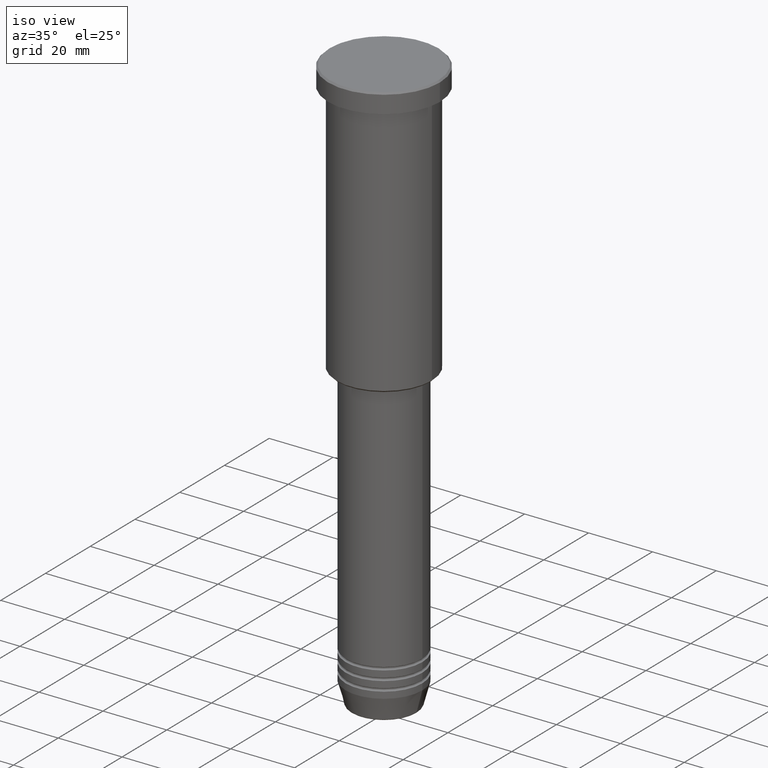
[diagram: clean part render]
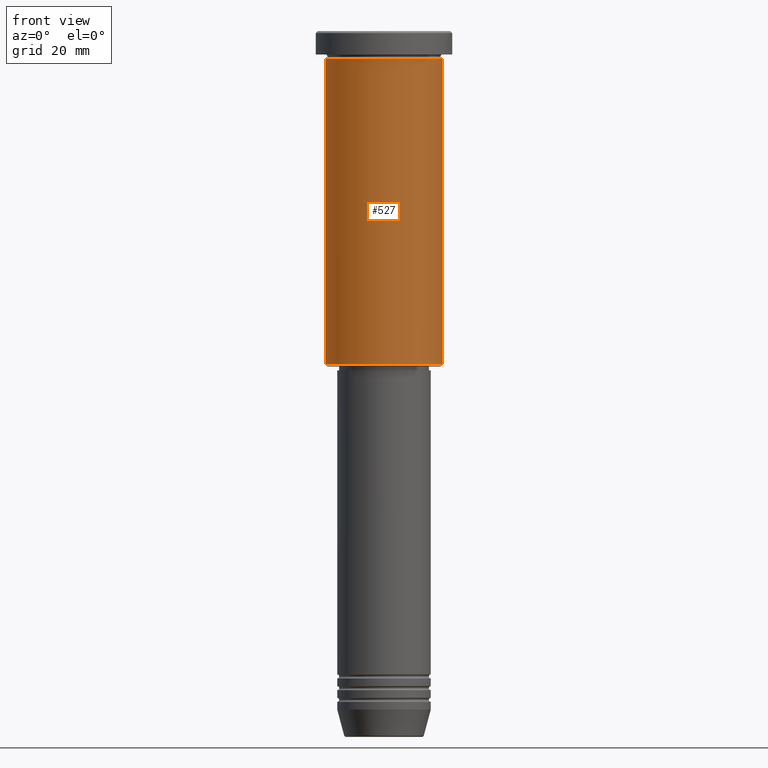
[diagram: tour spotlight — one face highlighted and labeled with its STEP entity id]
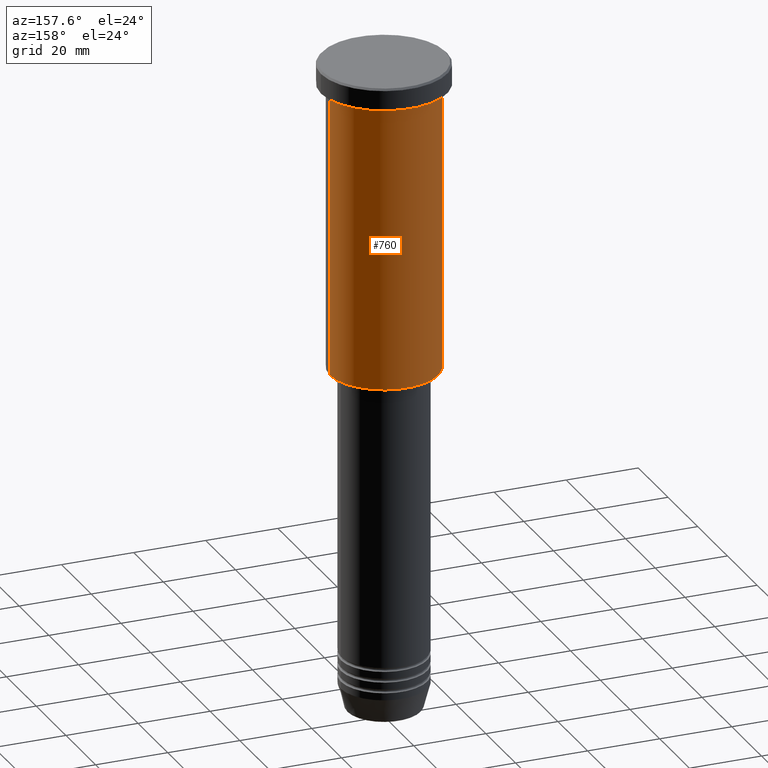
[diagram: tour spotlight — one face highlighted and labeled with its STEP entity id]
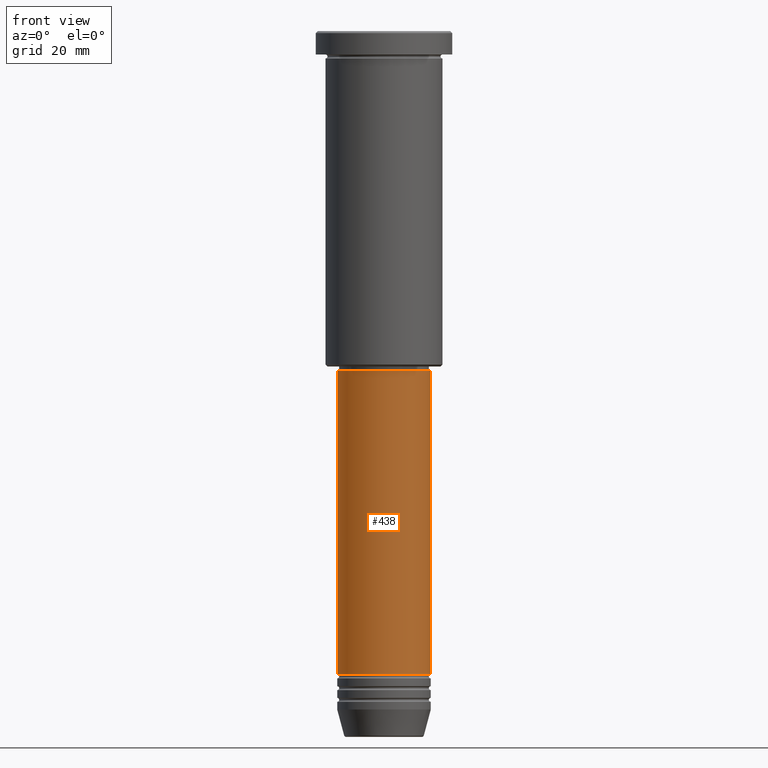
[diagram: tour spotlight — one face highlighted and labeled with its STEP entity id]
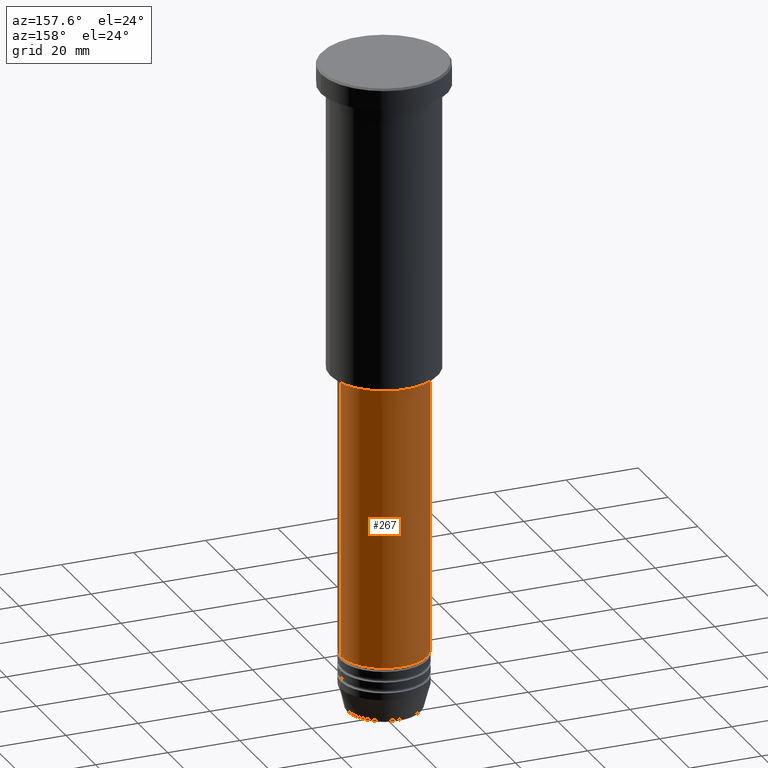
[diagram: tour spotlight — one face highlighted and labeled with its STEP entity id]
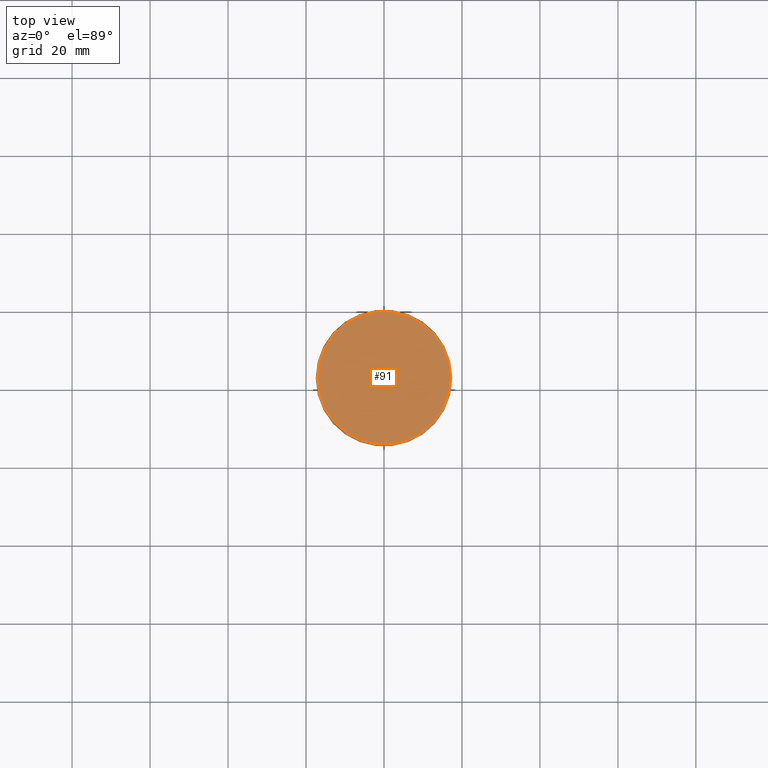
[diagram: tour spotlight — one face highlighted and labeled with its STEP entity id]
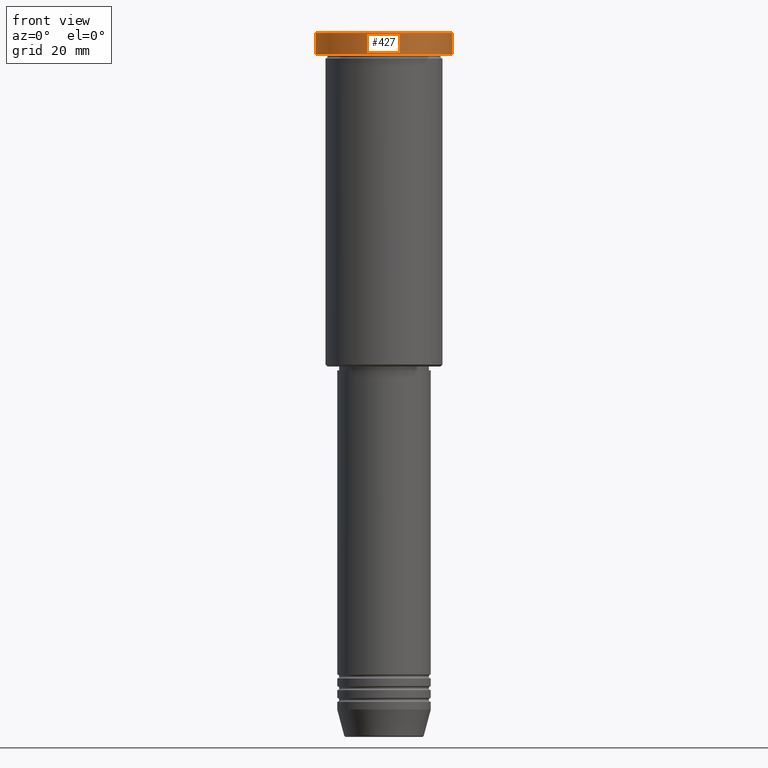
[diagram: tour spotlight — one face highlighted and labeled with its STEP entity id]
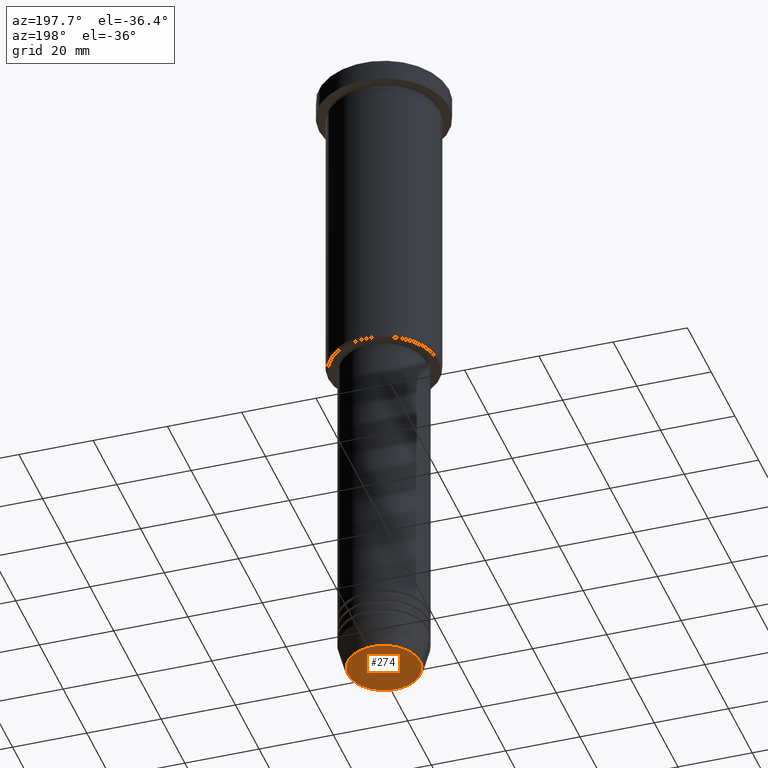
[diagram: tour spotlight — one face highlighted and labeled with its STEP entity id]
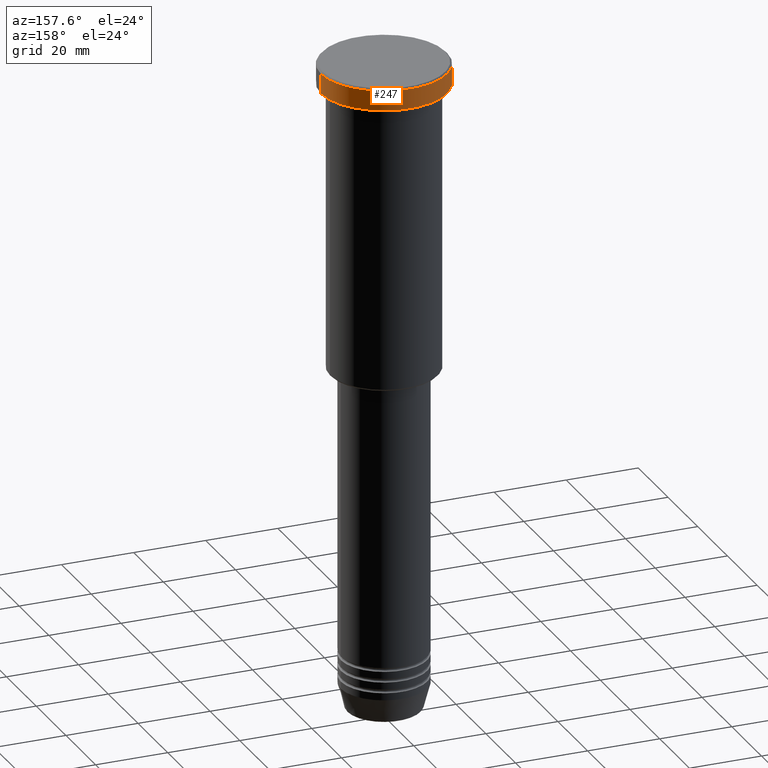
[diagram: tour spotlight — one face highlighted and labeled with its STEP entity id]
A machine part: a face-by-face anatomy tour. The part has 43 B-rep faces; the first image is the clean iso view, then the 8 largest visible faces are spotlighted one at a time (largest first), each with its STEP entity span.

Face 1 — front view, entity #527. In plain terms, the highlighted cylindrical surface (partial cylindrical patch) has radius 15 mm, axis along (-0, -0, 1).
Definition (entity closure, byte-faithful):
#44 = CARTESIAN_POINT ( 'NONE',  ( 0.000000000000000000, 0.000000000000000000, -6.999999999999995559 ) ) ;
#101 = CARTESIAN_POINT ( 'NONE',  ( -15.00000000000000000, 1.836970198721029589E-15, -6.999999999999995559 ) ) ;
#110 = DIRECTION ( 'NONE',  ( -0.000000000000000000, -0.000000000000000000, 1.000000000000000000 ) ) ;
#195 = VERTEX_POINT ( 'NONE', #391 ) ;
#220 = DIRECTION ( 'NONE',  ( 1.000000000000000000, 0.000000000000000000, 0.000000000000000000 ) ) ;
#222 = FACE_OUTER_BOUND ( 'NONE', #227, .T. ) ;
#226 = LINE ( 'NONE', #887, #1029 ) ;
#227 = EDGE_LOOP ( 'NONE', ( #426, #532, #1183, #449 ) ) ;
#229 = CARTESIAN_POINT ( 'NONE',  ( 15.00000000000000000, 0.000000000000000000, -6.999999999999995559 ) ) ;
#250 = VERTEX_POINT ( 'NONE', #229 ) ;
#277 = DIRECTION ( 'NONE',  ( 1.000000000000000000, 0.000000000000000000, 0.000000000000000000 ) ) ;
#340 = CIRCLE ( 'NONE', #1010, 15.00000000000000000 ) ;
#391 = CARTESIAN_POINT ( 'NONE',  ( 15.00000000000000000, 0.000000000000000000, -85.49999999999998579 ) ) ;
#398 = DIRECTION ( 'NONE',  ( -1.000000000000000000, 0.000000000000000000, 0.000000000000000000 ) ) ;
#419 = LINE ( 'NONE', #1046, #1141 ) ;
#426 = ORIENTED_EDGE ( 'NONE', *, *, #944, .F. ) ;
#449 = ORIENTED_EDGE ( 'NONE', *, *, #932, .F. ) ;
#509 = CARTESIAN_POINT ( 'NONE',  ( 0.000000000000000000, 0.000000000000000000, 0.000000000000000000 ) ) ;
#518 = CIRCLE ( 'NONE', #1103, 15.00000000000000000 ) ;
#527 = ADVANCED_FACE ( 'NONE', ( #222 ), #1044, .T. ) ;
#532 = ORIENTED_EDGE ( 'NONE', *, *, #1018, .T. ) ;
#602 = DIRECTION ( 'NONE',  ( -0.000000000000000000, -0.000000000000000000, 1.000000000000000000 ) ) ;
#729 = DIRECTION ( 'NONE',  ( -0.000000000000000000, -0.000000000000000000, 1.000000000000000000 ) ) ;
#738 = AXIS2_PLACEMENT_3D ( 'NONE', #509, #729, #277 ) ;
#743 = VERTEX_POINT ( 'NONE', #1090 ) ;
#754 = VERTEX_POINT ( 'NONE', #101 ) ;
#862 = DIRECTION ( 'NONE',  ( -0.000000000000000000, -0.000000000000000000, 1.000000000000000000 ) ) ;
#887 = CARTESIAN_POINT ( 'NONE',  ( 15.00000000000000000, 0.000000000000000000, 0.000000000000000000 ) ) ;
#932 = EDGE_CURVE ( 'NONE', #754, #250, #340, .T. ) ;
#939 = CARTESIAN_POINT ( 'NONE',  ( 0.000000000000000000, 0.000000000000000000, -85.49999999999998579 ) ) ;
#944 = EDGE_CURVE ( 'NONE', #743, #754, #419, .T. ) ;
#1010 = AXIS2_PLACEMENT_3D ( 'NONE', #44, #862, #220 ) ;
#1018 = EDGE_CURVE ( 'NONE', #743, #195, #518, .T. ) ;
#1029 = VECTOR ( 'NONE', #602, 1000.000000000000000 ) ;
#1034 = DIRECTION ( 'NONE',  ( -0.000000000000000000, -0.000000000000000000, 1.000000000000000000 ) ) ;
#1044 = CYLINDRICAL_SURFACE ( 'NONE', #738, 15.00000000000000000 ) ;
#1046 = CARTESIAN_POINT ( 'NONE',  ( -15.00000000000000000, 1.836970198721029589E-15, 0.000000000000000000 ) ) ;
#1090 = CARTESIAN_POINT ( 'NONE',  ( -15.00000000000000000, 1.836970198721029589E-15, -85.49999999999998579 ) ) ;
#1103 = AXIS2_PLACEMENT_3D ( 'NONE', #939, #1034, #398 ) ;
#1140 = EDGE_CURVE ( 'NONE', #195, #250, #226, .T. ) ;
#1141 = VECTOR ( 'NONE', #110, 1000.000000000000000 ) ;
#1183 = ORIENTED_EDGE ( 'NONE', *, *, #1140, .T. ) ;

Face 2 — auxiliary view, entity #760. In plain terms, the highlighted cylindrical surface (partial cylindrical patch) has radius 15 mm, axis along (-0, -0, 1).
Definition (entity closure, byte-faithful):
#1 = CARTESIAN_POINT ( 'NONE',  ( 0.000000000000000000, 0.000000000000000000, 0.000000000000000000 ) ) ;
#73 = DIRECTION ( 'NONE',  ( -0.000000000000000000, -0.000000000000000000, 1.000000000000000000 ) ) ;
#85 = DIRECTION ( 'NONE',  ( -0.000000000000000000, -0.000000000000000000, 1.000000000000000000 ) ) ;
#93 = ORIENTED_EDGE ( 'NONE', *, *, #1023, .T. ) ;
#101 = CARTESIAN_POINT ( 'NONE',  ( -15.00000000000000000, 1.836970198721029589E-15, -6.999999999999995559 ) ) ;
#110 = DIRECTION ( 'NONE',  ( -0.000000000000000000, -0.000000000000000000, 1.000000000000000000 ) ) ;
#112 = EDGE_LOOP ( 'NONE', ( #93, #440, #850, #1097 ) ) ;
#122 = DIRECTION ( 'NONE',  ( -1.000000000000000000, 0.000000000000000000, 0.000000000000000000 ) ) ;
#151 = CARTESIAN_POINT ( 'NONE',  ( 0.000000000000000000, 0.000000000000000000, -6.999999999999995559 ) ) ;
#158 = CIRCLE ( 'NONE', #819, 15.00000000000000000 ) ;
#177 = AXIS2_PLACEMENT_3D ( 'NONE', #151, #73, #795 ) ;
#195 = VERTEX_POINT ( 'NONE', #391 ) ;
#226 = LINE ( 'NONE', #887, #1029 ) ;
#229 = CARTESIAN_POINT ( 'NONE',  ( 15.00000000000000000, 0.000000000000000000, -6.999999999999995559 ) ) ;
#250 = VERTEX_POINT ( 'NONE', #229 ) ;
#306 = DIRECTION ( 'NONE',  ( -0.000000000000000000, -0.000000000000000000, 1.000000000000000000 ) ) ;
#391 = CARTESIAN_POINT ( 'NONE',  ( 15.00000000000000000, 0.000000000000000000, -85.49999999999998579 ) ) ;
#419 = LINE ( 'NONE', #1046, #1141 ) ;
#440 = ORIENTED_EDGE ( 'NONE', *, *, #944, .T. ) ;
#473 = EDGE_CURVE ( 'NONE', #250, #754, #696, .T. ) ;
#602 = DIRECTION ( 'NONE',  ( -0.000000000000000000, -0.000000000000000000, 1.000000000000000000 ) ) ;
#633 = CYLINDRICAL_SURFACE ( 'NONE', #756, 15.00000000000000000 ) ;
#640 = FACE_OUTER_BOUND ( 'NONE', #112, .T. ) ;
#696 = CIRCLE ( 'NONE', #177, 15.00000000000000000 ) ;
#743 = VERTEX_POINT ( 'NONE', #1090 ) ;
#754 = VERTEX_POINT ( 'NONE', #101 ) ;
#755 = CARTESIAN_POINT ( 'NONE',  ( 0.000000000000000000, 0.000000000000000000, -85.49999999999998579 ) ) ;
#756 = AXIS2_PLACEMENT_3D ( 'NONE', #1, #85, #926 ) ;
#760 = ADVANCED_FACE ( 'NONE', ( #640 ), #633, .T. ) ;
#795 = DIRECTION ( 'NONE',  ( 1.000000000000000000, 0.000000000000000000, 0.000000000000000000 ) ) ;
#819 = AXIS2_PLACEMENT_3D ( 'NONE', #755, #306, #122 ) ;
#850 = ORIENTED_EDGE ( 'NONE', *, *, #473, .F. ) ;
#887 = CARTESIAN_POINT ( 'NONE',  ( 15.00000000000000000, 0.000000000000000000, 0.000000000000000000 ) ) ;
#926 = DIRECTION ( 'NONE',  ( 1.000000000000000000, 0.000000000000000000, 0.000000000000000000 ) ) ;
#944 = EDGE_CURVE ( 'NONE', #743, #754, #419, .T. ) ;
#1023 = EDGE_CURVE ( 'NONE', #195, #743, #158, .T. ) ;
#1029 = VECTOR ( 'NONE', #602, 1000.000000000000000 ) ;
#1046 = CARTESIAN_POINT ( 'NONE',  ( -15.00000000000000000, 1.836970198721029589E-15, 0.000000000000000000 ) ) ;
#1090 = CARTESIAN_POINT ( 'NONE',  ( -15.00000000000000000, 1.836970198721029589E-15, -85.49999999999998579 ) ) ;
#1097 = ORIENTED_EDGE ( 'NONE', *, *, #1140, .F. ) ;
#1140 = EDGE_CURVE ( 'NONE', #195, #250, #226, .T. ) ;
#1141 = VECTOR ( 'NONE', #110, 1000.000000000000000 ) ;

Face 3 — front view, entity #438. In plain terms, the highlighted cylindrical surface (partial cylindrical patch) has radius 12 mm, axis along (-0, -0, 1).
Definition (entity closure, byte-faithful):
#64 = FACE_OUTER_BOUND ( 'NONE', #83, .T. ) ;
#69 = AXIS2_PLACEMENT_3D ( 'NONE', #1173, #719, #635 ) ;
#83 = EDGE_LOOP ( 'NONE', ( #472, #381, #694, #1176 ) ) ;
#135 = LINE ( 'NONE', #513, #1079 ) ;
#207 = EDGE_CURVE ( 'NONE', #241, #956, #537, .T. ) ;
#223 = DIRECTION ( 'NONE',  ( 1.000000000000000000, 0.000000000000000000, 0.000000000000000000 ) ) ;
#241 = VERTEX_POINT ( 'NONE', #748 ) ;
#244 = CYLINDRICAL_SURFACE ( 'NONE', #402, 12.00000000000000000 ) ;
#249 = DIRECTION ( 'NONE',  ( -0.000000000000000000, -0.000000000000000000, 1.000000000000000000 ) ) ;
#251 = CARTESIAN_POINT ( 'NONE',  ( -12.00000000000000000, 1.469576158976823947E-15, -87.00000000000002842 ) ) ;
#308 = EDGE_CURVE ( 'NONE', #956, #1045, #135, .T. ) ;
#381 = ORIENTED_EDGE ( 'NONE', *, *, #207, .T. ) ;
#402 = AXIS2_PLACEMENT_3D ( 'NONE', #894, #866, #223 ) ;
#438 = ADVANCED_FACE ( 'NONE', ( #64 ), #244, .T. ) ;
#450 = DIRECTION ( 'NONE',  ( -0.000000000000000000, -0.000000000000000000, 1.000000000000000000 ) ) ;
#472 = ORIENTED_EDGE ( 'NONE', *, *, #548, .F. ) ;
#496 = CARTESIAN_POINT ( 'NONE',  ( 12.00000000000000000, 0.000000000000000000, -164.9999999999999716 ) ) ;
#500 = CIRCLE ( 'NONE', #69, 12.00000000000000000 ) ;
#513 = CARTESIAN_POINT ( 'NONE',  ( 12.00000000000000000, 0.000000000000000000, 0.000000000000000000 ) ) ;
#537 = CIRCLE ( 'NONE', #775, 12.00000000000000000 ) ;
#548 = EDGE_CURVE ( 'NONE', #241, #1143, #747, .T. ) ;
#579 = EDGE_CURVE ( 'NONE', #1143, #1045, #500, .T. ) ;
#635 = DIRECTION ( 'NONE',  ( 1.000000000000000000, 0.000000000000000000, 0.000000000000000000 ) ) ;
#682 = VECTOR ( 'NONE', #937, 1000.000000000000000 ) ;
#694 = ORIENTED_EDGE ( 'NONE', *, *, #308, .T. ) ;
#719 = DIRECTION ( 'NONE',  ( -0.000000000000000000, -0.000000000000000000, 1.000000000000000000 ) ) ;
#747 = LINE ( 'NONE', #1114, #682 ) ;
#748 = CARTESIAN_POINT ( 'NONE',  ( -12.00000000000000000, 1.469576158976823947E-15, -164.9999999999999716 ) ) ;
#775 = AXIS2_PLACEMENT_3D ( 'NONE', #1110, #450, #807 ) ;
#807 = DIRECTION ( 'NONE',  ( 1.000000000000000000, 0.000000000000000000, 0.000000000000000000 ) ) ;
#866 = DIRECTION ( 'NONE',  ( -0.000000000000000000, -0.000000000000000000, 1.000000000000000000 ) ) ;
#879 = CARTESIAN_POINT ( 'NONE',  ( 12.00000000000000000, 0.000000000000000000, -87.00000000000002842 ) ) ;
#894 = CARTESIAN_POINT ( 'NONE',  ( 0.000000000000000000, 0.000000000000000000, 0.000000000000000000 ) ) ;
#937 = DIRECTION ( 'NONE',  ( -0.000000000000000000, -0.000000000000000000, 1.000000000000000000 ) ) ;
#956 = VERTEX_POINT ( 'NONE', #496 ) ;
#1045 = VERTEX_POINT ( 'NONE', #879 ) ;
#1079 = VECTOR ( 'NONE', #249, 1000.000000000000000 ) ;
#1110 = CARTESIAN_POINT ( 'NONE',  ( 0.000000000000000000, 0.000000000000000000, -164.9999999999999716 ) ) ;
#1114 = CARTESIAN_POINT ( 'NONE',  ( -12.00000000000000000, 1.469576158976823947E-15, 0.000000000000000000 ) ) ;
#1143 = VERTEX_POINT ( 'NONE', #251 ) ;
#1173 = CARTESIAN_POINT ( 'NONE',  ( 0.000000000000000000, 0.000000000000000000, -87.00000000000002842 ) ) ;
#1176 = ORIENTED_EDGE ( 'NONE', *, *, #579, .F. ) ;

Face 4 — auxiliary view, entity #267. In plain terms, the highlighted cylindrical surface (partial cylindrical patch) has radius 12 mm, axis along (-0, -0, 1).
Definition (entity closure, byte-faithful):
#24 = ORIENTED_EDGE ( 'NONE', *, *, #308, .F. ) ;
#135 = LINE ( 'NONE', #513, #1079 ) ;
#150 = CYLINDRICAL_SURFACE ( 'NONE', #231, 12.00000000000000000 ) ;
#202 = EDGE_CURVE ( 'NONE', #1045, #1143, #384, .T. ) ;
#231 = AXIS2_PLACEMENT_3D ( 'NONE', #535, #892, #1162 ) ;
#241 = VERTEX_POINT ( 'NONE', #748 ) ;
#249 = DIRECTION ( 'NONE',  ( -0.000000000000000000, -0.000000000000000000, 1.000000000000000000 ) ) ;
#251 = CARTESIAN_POINT ( 'NONE',  ( -12.00000000000000000, 1.469576158976823947E-15, -87.00000000000002842 ) ) ;
#266 = DIRECTION ( 'NONE',  ( -0.000000000000000000, -0.000000000000000000, 1.000000000000000000 ) ) ;
#267 = ADVANCED_FACE ( 'NONE', ( #977 ), #150, .T. ) ;
#308 = EDGE_CURVE ( 'NONE', #956, #1045, #135, .T. ) ;
#383 = ORIENTED_EDGE ( 'NONE', *, *, #548, .T. ) ;
#384 = CIRCLE ( 'NONE', #1136, 12.00000000000000000 ) ;
#434 = ORIENTED_EDGE ( 'NONE', *, *, #1012, .T. ) ;
#485 = DIRECTION ( 'NONE',  ( -0.000000000000000000, -0.000000000000000000, 1.000000000000000000 ) ) ;
#496 = CARTESIAN_POINT ( 'NONE',  ( 12.00000000000000000, 0.000000000000000000, -164.9999999999999716 ) ) ;
#513 = CARTESIAN_POINT ( 'NONE',  ( 12.00000000000000000, 0.000000000000000000, 0.000000000000000000 ) ) ;
#535 = CARTESIAN_POINT ( 'NONE',  ( 0.000000000000000000, 0.000000000000000000, 0.000000000000000000 ) ) ;
#548 = EDGE_CURVE ( 'NONE', #241, #1143, #747, .T. ) ;
#554 = CARTESIAN_POINT ( 'NONE',  ( 0.000000000000000000, 0.000000000000000000, -87.00000000000002842 ) ) ;
#610 = AXIS2_PLACEMENT_3D ( 'NONE', #1132, #485, #845 ) ;
#682 = VECTOR ( 'NONE', #937, 1000.000000000000000 ) ;
#742 = DIRECTION ( 'NONE',  ( 1.000000000000000000, 0.000000000000000000, 0.000000000000000000 ) ) ;
#747 = LINE ( 'NONE', #1114, #682 ) ;
#748 = CARTESIAN_POINT ( 'NONE',  ( -12.00000000000000000, 1.469576158976823947E-15, -164.9999999999999716 ) ) ;
#845 = DIRECTION ( 'NONE',  ( 1.000000000000000000, 0.000000000000000000, 0.000000000000000000 ) ) ;
#879 = CARTESIAN_POINT ( 'NONE',  ( 12.00000000000000000, 0.000000000000000000, -87.00000000000002842 ) ) ;
#892 = DIRECTION ( 'NONE',  ( -0.000000000000000000, -0.000000000000000000, 1.000000000000000000 ) ) ;
#937 = DIRECTION ( 'NONE',  ( -0.000000000000000000, -0.000000000000000000, 1.000000000000000000 ) ) ;
#956 = VERTEX_POINT ( 'NONE', #496 ) ;
#959 = ORIENTED_EDGE ( 'NONE', *, *, #202, .F. ) ;
#977 = FACE_OUTER_BOUND ( 'NONE', #1158, .T. ) ;
#1012 = EDGE_CURVE ( 'NONE', #956, #241, #1154, .T. ) ;
#1045 = VERTEX_POINT ( 'NONE', #879 ) ;
#1079 = VECTOR ( 'NONE', #249, 1000.000000000000000 ) ;
#1114 = CARTESIAN_POINT ( 'NONE',  ( -12.00000000000000000, 1.469576158976823947E-15, 0.000000000000000000 ) ) ;
#1132 = CARTESIAN_POINT ( 'NONE',  ( 0.000000000000000000, 0.000000000000000000, -164.9999999999999716 ) ) ;
#1136 = AXIS2_PLACEMENT_3D ( 'NONE', #554, #266, #742 ) ;
#1143 = VERTEX_POINT ( 'NONE', #251 ) ;
#1154 = CIRCLE ( 'NONE', #610, 12.00000000000000000 ) ;
#1158 = EDGE_LOOP ( 'NONE', ( #434, #383, #959, #24 ) ) ;
#1162 = DIRECTION ( 'NONE',  ( 1.000000000000000000, 0.000000000000000000, 0.000000000000000000 ) ) ;

Face 5 — top view, entity #91. In plain terms, the highlighted planar face has unit normal (0, -0, 1).
Definition (entity closure, byte-faithful):
#16 = DIRECTION ( 'NONE',  ( 0.000000000000000000, -0.000000000000000000, 1.000000000000000000 ) ) ;
#37 = ORIENTED_EDGE ( 'NONE', *, *, #1066, .T. ) ;
#91 = ADVANCED_FACE ( 'NONE', ( #929 ), #477, .T. ) ;
#314 = DIRECTION ( 'NONE',  ( 1.000000000000000000, 0.000000000000000000, 0.000000000000000000 ) ) ;
#336 = EDGE_CURVE ( 'NONE', #724, #341, #386, .T. ) ;
#341 = VERTEX_POINT ( 'NONE', #678 ) ;
#386 = CIRCLE ( 'NONE', #538, 17.00000000000001421 ) ;
#399 = AXIS2_PLACEMENT_3D ( 'NONE', #838, #16, #1050 ) ;
#474 = ORIENTED_EDGE ( 'NONE', *, *, #336, .T. ) ;
#477 = PLANE ( 'NONE',  #399 ) ;
#501 = CIRCLE ( 'NONE', #650, 17.00000000000001421 ) ;
#538 = AXIS2_PLACEMENT_3D ( 'NONE', #603, #954, #314 ) ;
#603 = CARTESIAN_POINT ( 'NONE',  ( 0.000000000000000000, 0.000000000000000000, 0.000000000000000000 ) ) ;
#617 = CARTESIAN_POINT ( 'NONE',  ( 0.000000000000000000, 0.000000000000000000, 0.000000000000000000 ) ) ;
#650 = AXIS2_PLACEMENT_3D ( 'NONE', #617, #790, #1051 ) ;
#678 = CARTESIAN_POINT ( 'NONE',  ( -17.00000000000001421, 0.000000000000000000, 0.000000000000000000 ) ) ;
#680 = EDGE_LOOP ( 'NONE', ( #37, #474 ) ) ;
#724 = VERTEX_POINT ( 'NONE', #812 ) ;
#790 = DIRECTION ( 'NONE',  ( -0.000000000000000000, -0.000000000000000000, 1.000000000000000000 ) ) ;
#812 = CARTESIAN_POINT ( 'NONE',  ( 17.00000000000001421, 2.112515728529185250E-15, 0.000000000000000000 ) ) ;
#838 = CARTESIAN_POINT ( 'NONE',  ( 0.000000000000000000, 0.000000000000000000, 0.000000000000000000 ) ) ;
#929 = FACE_OUTER_BOUND ( 'NONE', #680, .T. ) ;
#954 = DIRECTION ( 'NONE',  ( -0.000000000000000000, -0.000000000000000000, 1.000000000000000000 ) ) ;
#1050 = DIRECTION ( 'NONE',  ( 1.000000000000000000, 0.000000000000000000, 0.000000000000000000 ) ) ;
#1051 = DIRECTION ( 'NONE',  ( 1.000000000000000000, 0.000000000000000000, 0.000000000000000000 ) ) ;
#1066 = EDGE_CURVE ( 'NONE', #341, #724, #501, .T. ) ;

Face 6 — front view, entity #427. In plain terms, the highlighted cylindrical surface (partial cylindrical patch) has radius 17.5 mm, axis along (-0, -0, 1).
Definition (entity closure, byte-faithful):
#12 = CARTESIAN_POINT ( 'NONE',  ( 17.50000000000000000, 0.000000000000000000, -5.999999999999995559 ) ) ;
#28 = DIRECTION ( 'NONE',  ( 0.000000000000000000, 0.000000000000000000, -1.000000000000000000 ) ) ;
#30 = AXIS2_PLACEMENT_3D ( 'NONE', #1049, #530, #884 ) ;
#45 = LINE ( 'NONE', #599, #1006 ) ;
#86 = AXIS2_PLACEMENT_3D ( 'NONE', #848, #28, #310 ) ;
#190 = VERTEX_POINT ( 'NONE', #12 ) ;
#232 = EDGE_CURVE ( 'NONE', #904, #920, #337, .T. ) ;
#242 = ORIENTED_EDGE ( 'NONE', *, *, #304, .T. ) ;
#257 = DIRECTION ( 'NONE',  ( -0.000000000000000000, -0.000000000000000000, 1.000000000000000000 ) ) ;
#259 = DIRECTION ( 'NONE',  ( 1.000000000000000000, 0.000000000000000000, 0.000000000000000000 ) ) ;
#298 = CIRCLE ( 'NONE', #1119, 17.50000000000000000 ) ;
#304 = EDGE_CURVE ( 'NONE', #949, #190, #298, .T. ) ;
#310 = DIRECTION ( 'NONE',  ( 1.000000000000000000, 0.000000000000000000, 0.000000000000000000 ) ) ;
#316 = DIRECTION ( 'NONE',  ( -0.000000000000000000, -0.000000000000000000, 1.000000000000000000 ) ) ;
#337 = CIRCLE ( 'NONE', #86, 17.50000000000000000 ) ;
#343 = EDGE_LOOP ( 'NONE', ( #882, #242, #875, #856 ) ) ;
#358 = LINE ( 'NONE', #1080, #646 ) ;
#377 = EDGE_CURVE ( 'NONE', #949, #920, #45, .T. ) ;
#427 = ADVANCED_FACE ( 'NONE', ( #659 ), #1146, .T. ) ;
#484 = EDGE_CURVE ( 'NONE', #190, #904, #358, .T. ) ;
#530 = DIRECTION ( 'NONE',  ( -0.000000000000000000, -0.000000000000000000, 1.000000000000000000 ) ) ;
#568 = DIRECTION ( 'NONE',  ( -0.000000000000000000, -0.000000000000000000, 1.000000000000000000 ) ) ;
#599 = CARTESIAN_POINT ( 'NONE',  ( -17.50000000000000000, 2.143131898507868248E-15, 0.000000000000000000 ) ) ;
#646 = VECTOR ( 'NONE', #257, 1000.000000000000000 ) ;
#659 = FACE_OUTER_BOUND ( 'NONE', #343, .T. ) ;
#763 = CARTESIAN_POINT ( 'NONE',  ( -17.50000000000000000, 2.143131898507868248E-15, -0.5000000000000003331 ) ) ;
#848 = CARTESIAN_POINT ( 'NONE',  ( 0.000000000000000000, 0.000000000000000000, -0.5000000000000003331 ) ) ;
#856 = ORIENTED_EDGE ( 'NONE', *, *, #232, .T. ) ;
#858 = CARTESIAN_POINT ( 'NONE',  ( 17.50000000000000000, 0.000000000000000000, -0.5000000000000003331 ) ) ;
#875 = ORIENTED_EDGE ( 'NONE', *, *, #484, .T. ) ;
#882 = ORIENTED_EDGE ( 'NONE', *, *, #377, .F. ) ;
#884 = DIRECTION ( 'NONE',  ( 1.000000000000000000, 0.000000000000000000, 0.000000000000000000 ) ) ;
#904 = VERTEX_POINT ( 'NONE', #858 ) ;
#920 = VERTEX_POINT ( 'NONE', #763 ) ;
#949 = VERTEX_POINT ( 'NONE', #1122 ) ;
#1006 = VECTOR ( 'NONE', #316, 1000.000000000000000 ) ;
#1049 = CARTESIAN_POINT ( 'NONE',  ( 0.000000000000000000, 0.000000000000000000, 0.000000000000000000 ) ) ;
#1080 = CARTESIAN_POINT ( 'NONE',  ( 17.50000000000000000, 0.000000000000000000, 0.000000000000000000 ) ) ;
#1112 = CARTESIAN_POINT ( 'NONE',  ( 0.000000000000000000, 0.000000000000000000, -5.999999999999995559 ) ) ;
#1119 = AXIS2_PLACEMENT_3D ( 'NONE', #1112, #568, #259 ) ;
#1122 = CARTESIAN_POINT ( 'NONE',  ( -17.50000000000000000, 2.143131898507868248E-15, -5.999999999999995559 ) ) ;
#1146 = CYLINDRICAL_SURFACE ( 'NONE', #30, 17.50000000000000000 ) ;

Face 7 — auxiliary view, entity #274. In plain terms, the highlighted planar face has unit normal (0, -0, 1).
Definition (entity closure, byte-faithful):
#19 = VERTEX_POINT ( 'NONE', #878 ) ;
#51 = AXIS2_PLACEMENT_3D ( 'NONE', #641, #178, #288 ) ;
#178 = DIRECTION ( 'NONE',  ( 0.000000000000000000, 0.000000000000000000, -1.000000000000000000 ) ) ;
#205 = CARTESIAN_POINT ( 'NONE',  ( -9.740692158992667160, 1.222463696683475393E-15, -181.0000000000000000 ) ) ;
#215 = AXIS2_PLACEMENT_3D ( 'NONE', #716, #287, #271 ) ;
#265 = PLANE ( 'NONE',  #457 ) ;
#271 = DIRECTION ( 'NONE',  ( 1.000000000000000000, 0.000000000000000000, 0.000000000000000000 ) ) ;
#274 = ADVANCED_FACE ( 'NONE', ( #350 ), #265, .F. ) ;
#287 = DIRECTION ( 'NONE',  ( 0.000000000000000000, 0.000000000000000000, -1.000000000000000000 ) ) ;
#288 = DIRECTION ( 'NONE',  ( 1.000000000000000000, 0.000000000000000000, 0.000000000000000000 ) ) ;
#350 = FACE_OUTER_BOUND ( 'NONE', #886, .T. ) ;
#457 = AXIS2_PLACEMENT_3D ( 'NONE', #1179, #467, #1099 ) ;
#460 = CIRCLE ( 'NONE', #215, 9.740692158992667160 ) ;
#467 = DIRECTION ( 'NONE',  ( 0.000000000000000000, -0.000000000000000000, 1.000000000000000000 ) ) ;
#641 = CARTESIAN_POINT ( 'NONE',  ( 0.000000000000000000, 0.000000000000000000, -181.0000000000000000 ) ) ;
#658 = EDGE_CURVE ( 'NONE', #19, #980, #984, .T. ) ;
#716 = CARTESIAN_POINT ( 'NONE',  ( 0.000000000000000000, 0.000000000000000000, -181.0000000000000000 ) ) ;
#725 = EDGE_CURVE ( 'NONE', #980, #19, #460, .T. ) ;
#878 = CARTESIAN_POINT ( 'NONE',  ( 9.740692158992667160, 0.000000000000000000, -181.0000000000000000 ) ) ;
#886 = EDGE_LOOP ( 'NONE', ( #1087, #964 ) ) ;
#964 = ORIENTED_EDGE ( 'NONE', *, *, #725, .T. ) ;
#980 = VERTEX_POINT ( 'NONE', #205 ) ;
#984 = CIRCLE ( 'NONE', #51, 9.740692158992667160 ) ;
#1087 = ORIENTED_EDGE ( 'NONE', *, *, #658, .T. ) ;
#1099 = DIRECTION ( 'NONE',  ( 1.000000000000000000, 0.000000000000000000, 0.000000000000000000 ) ) ;
#1179 = CARTESIAN_POINT ( 'NONE',  ( 0.000000000000000000, 0.000000000000000000, -181.0000000000000000 ) ) ;

Face 8 — auxiliary view, entity #247. In plain terms, the highlighted cylindrical surface (partial cylindrical patch) has radius 17.5 mm, axis along (-0, -0, 1).
Definition (entity closure, byte-faithful):
#12 = CARTESIAN_POINT ( 'NONE',  ( 17.50000000000000000, 0.000000000000000000, -5.999999999999995559 ) ) ;
#35 = DIRECTION ( 'NONE',  ( 0.000000000000000000, 0.000000000000000000, -1.000000000000000000 ) ) ;
#45 = LINE ( 'NONE', #599, #1006 ) ;
#68 = EDGE_LOOP ( 'NONE', ( #1068, #685, #221, #598 ) ) ;
#82 = DIRECTION ( 'NONE',  ( -0.000000000000000000, -0.000000000000000000, 1.000000000000000000 ) ) ;
#84 = EDGE_CURVE ( 'NONE', #190, #949, #931, .T. ) ;
#190 = VERTEX_POINT ( 'NONE', #12 ) ;
#198 = AXIS2_PLACEMENT_3D ( 'NONE', #924, #35, #584 ) ;
#221 = ORIENTED_EDGE ( 'NONE', *, *, #224, .T. ) ;
#224 = EDGE_CURVE ( 'NONE', #920, #904, #713, .T. ) ;
#247 = ADVANCED_FACE ( 'NONE', ( #417 ), #1054, .T. ) ;
#257 = DIRECTION ( 'NONE',  ( -0.000000000000000000, -0.000000000000000000, 1.000000000000000000 ) ) ;
#286 = DIRECTION ( 'NONE',  ( 1.000000000000000000, 0.000000000000000000, 0.000000000000000000 ) ) ;
#316 = DIRECTION ( 'NONE',  ( -0.000000000000000000, -0.000000000000000000, 1.000000000000000000 ) ) ;
#358 = LINE ( 'NONE', #1080, #646 ) ;
#377 = EDGE_CURVE ( 'NONE', #949, #920, #45, .T. ) ;
#417 = FACE_OUTER_BOUND ( 'NONE', #68, .T. ) ;
#484 = EDGE_CURVE ( 'NONE', #190, #904, #358, .T. ) ;
#584 = DIRECTION ( 'NONE',  ( 1.000000000000000000, 0.000000000000000000, 0.000000000000000000 ) ) ;
#598 = ORIENTED_EDGE ( 'NONE', *, *, #484, .F. ) ;
#599 = CARTESIAN_POINT ( 'NONE',  ( -17.50000000000000000, 2.143131898507868248E-15, 0.000000000000000000 ) ) ;
#646 = VECTOR ( 'NONE', #257, 1000.000000000000000 ) ;
#663 = AXIS2_PLACEMENT_3D ( 'NONE', #1022, #82, #286 ) ;
#685 = ORIENTED_EDGE ( 'NONE', *, *, #377, .T. ) ;
#697 = DIRECTION ( 'NONE',  ( 1.000000000000000000, 0.000000000000000000, 0.000000000000000000 ) ) ;
#713 = CIRCLE ( 'NONE', #198, 17.50000000000000000 ) ;
#763 = CARTESIAN_POINT ( 'NONE',  ( -17.50000000000000000, 2.143131898507868248E-15, -0.5000000000000003331 ) ) ;
#800 = CARTESIAN_POINT ( 'NONE',  ( 0.000000000000000000, 0.000000000000000000, 0.000000000000000000 ) ) ;
#858 = CARTESIAN_POINT ( 'NONE',  ( 17.50000000000000000, 0.000000000000000000, -0.5000000000000003331 ) ) ;
#904 = VERTEX_POINT ( 'NONE', #858 ) ;
#920 = VERTEX_POINT ( 'NONE', #763 ) ;
#924 = CARTESIAN_POINT ( 'NONE',  ( 0.000000000000000000, 0.000000000000000000, -0.5000000000000003331 ) ) ;
#931 = CIRCLE ( 'NONE', #663, 17.50000000000000000 ) ;
#949 = VERTEX_POINT ( 'NONE', #1122 ) ;
#1006 = VECTOR ( 'NONE', #316, 1000.000000000000000 ) ;
#1022 = CARTESIAN_POINT ( 'NONE',  ( 0.000000000000000000, 0.000000000000000000, -5.999999999999995559 ) ) ;
#1054 = CYLINDRICAL_SURFACE ( 'NONE', #1100, 17.50000000000000000 ) ;
#1068 = ORIENTED_EDGE ( 'NONE', *, *, #84, .T. ) ;
#1070 = DIRECTION ( 'NONE',  ( -0.000000000000000000, -0.000000000000000000, 1.000000000000000000 ) ) ;
#1080 = CARTESIAN_POINT ( 'NONE',  ( 17.50000000000000000, 0.000000000000000000, 0.000000000000000000 ) ) ;
#1100 = AXIS2_PLACEMENT_3D ( 'NONE', #800, #1070, #697 ) ;
#1122 = CARTESIAN_POINT ( 'NONE',  ( -17.50000000000000000, 2.143131898507868248E-15, -5.999999999999995559 ) ) ;